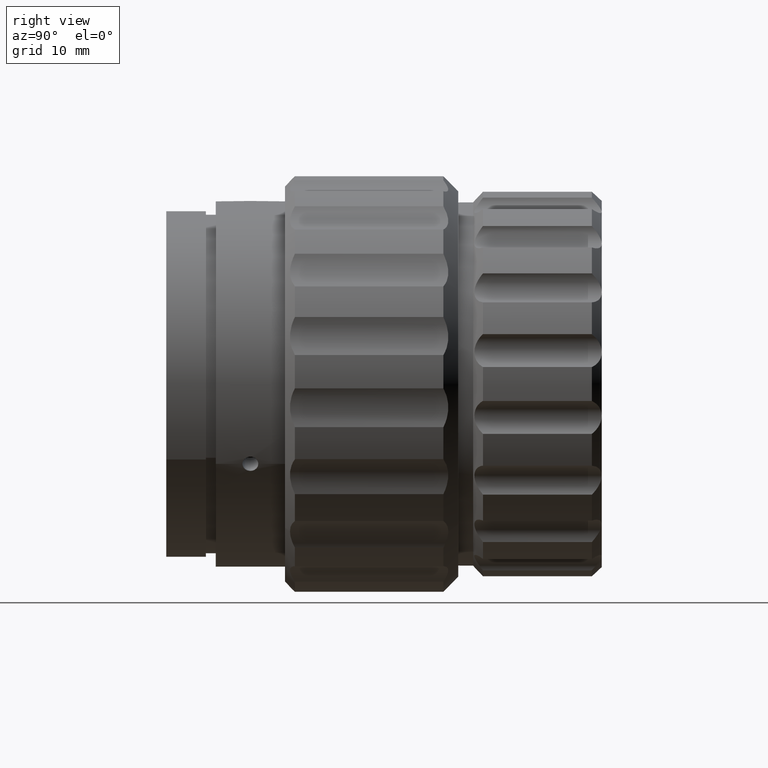
[diagram: clean part render]
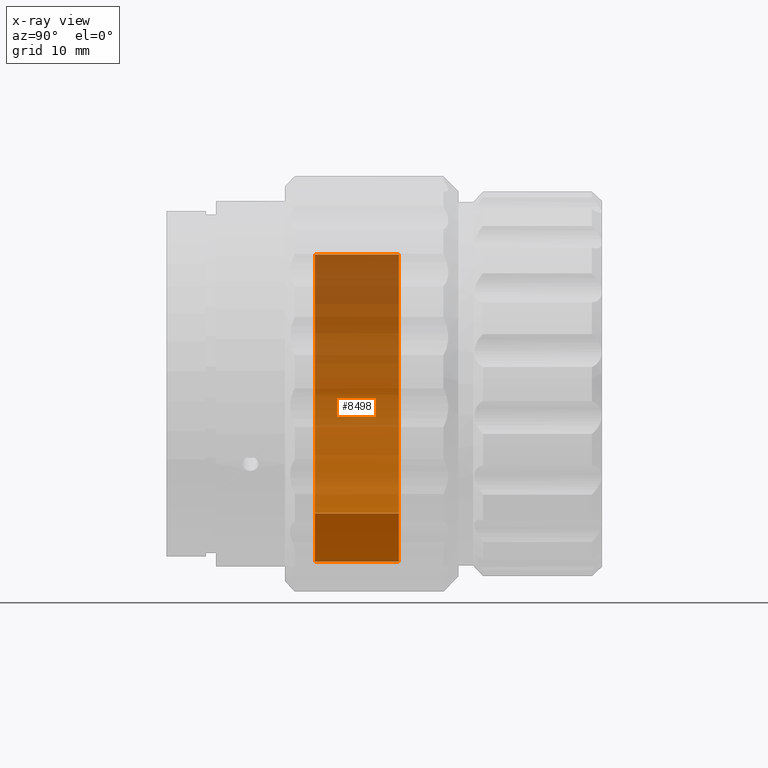
[diagram: x-ray — body ghosted, one internal face saturated and labeled with its STEP entity id]
A machine part, right view, then the same camera in x-ray: the body is ghosted and one INTERNAL B-rep face — a face not visible from any outside direction — is saturated and labeled: STEP entity #8498.
In plain terms, the highlighted cylindrical surface (partial cylindrical patch) has radius 18 mm, axis along (0, -1, -0).
Its self-contained STEP definition (entity closure, byte-faithful):
#65 = AXIS2_PLACEMENT_3D ( 'NONE', #7885, #6218, #9485 ) ;
#255 = ORIENTED_EDGE ( 'NONE', *, *, #7639, .T. ) ;
#1141 = DIRECTION ( 'NONE',  ( 0.6871969081691013947, 0.000000000000000000, -0.7264712034229765525 ) ) ;
#1534 = AXIS2_PLACEMENT_3D ( 'NONE', #3418, #8919, #1141 ) ;
#1547 = FACE_OUTER_BOUND ( 'NONE', #9885, .T. ) ;
#2254 = VERTEX_POINT ( 'NONE', #8409 ) ;
#2287 = ORIENTED_EDGE ( 'NONE', *, *, #6771, .F. ) ;
#2650 = DIRECTION ( 'NONE',  ( 0.000000000000000000, -1.000000000000000000, -0.000000000000000000 ) ) ;
#2898 = LINE ( 'NONE', #3860, #4098 ) ;
#3418 = CARTESIAN_POINT ( 'NONE',  ( 5.971701014312827738, -20.54875568700542487, 44.90330644533106863 ) ) ;
#3767 = ORIENTED_EDGE ( 'NONE', *, *, #9599, .T. ) ;
#3848 = DIRECTION ( 'NONE',  ( 0.6871969081691013947, 0.000000000000000000, -0.7264712034229765525 ) ) ;
#3860 = CARTESIAN_POINT ( 'NONE',  ( 18.34124536135665196, -23.54875568700542487, 31.82682478371749113 ) ) ;
#3891 = CARTESIAN_POINT ( 'NONE',  ( 5.971701014312827738, -12.04875568700542487, 44.90330644533106863 ) ) ;
#3893 = EDGE_CURVE ( 'NONE', #5053, #5384, #2898, .T. ) ;
#3945 = VECTOR ( 'NONE', #2650, 1000.000000000000000 ) ;
#4098 = VECTOR ( 'NONE', #7518, 1000.000000000000000 ) ;
#4189 = CARTESIAN_POINT ( 'NONE',  ( -6.397843332730995591, -23.54875568700542487, 57.97978810694464613 ) ) ;
#4883 = LINE ( 'NONE', #4189, #3945 ) ;
#5053 = VERTEX_POINT ( 'NONE', #8071 ) ;
#5160 = CARTESIAN_POINT ( 'NONE',  ( 18.34124536135665196, -20.54875568700542487, 31.82682478371749113 ) ) ;
#5384 = VERTEX_POINT ( 'NONE', #5160 ) ;
#5419 = DIRECTION ( 'NONE',  ( 0.000000000000000000, -1.000000000000000000, -0.000000000000000000 ) ) ;
#6218 = DIRECTION ( 'NONE',  ( 0.000000000000000000, -1.000000000000000000, -0.000000000000000000 ) ) ;
#6323 = VERTEX_POINT ( 'NONE', #10024 ) ;
#6529 = CIRCLE ( 'NONE', #7976, 18.00000000000000000 ) ;
#6771 = EDGE_CURVE ( 'NONE', #6323, #5053, #6529, .T. ) ;
#6884 = CIRCLE ( 'NONE', #1534, 18.00000000000000000 ) ;
#7026 = CYLINDRICAL_SURFACE ( 'NONE', #65, 18.00000000000000000 ) ;
#7518 = DIRECTION ( 'NONE',  ( 0.000000000000000000, -1.000000000000000000, -0.000000000000000000 ) ) ;
#7639 = EDGE_CURVE ( 'NONE', #6323, #2254, #4883, .T. ) ;
#7885 = CARTESIAN_POINT ( 'NONE',  ( 5.971701014312827738, -23.54875568700542487, 44.90330644533106863 ) ) ;
#7976 = AXIS2_PLACEMENT_3D ( 'NONE', #3891, #5419, #3848 ) ;
#8071 = CARTESIAN_POINT ( 'NONE',  ( 18.34124536135665196, -12.04875568700542487, 31.82682478371749113 ) ) ;
#8409 = CARTESIAN_POINT ( 'NONE',  ( -6.397843332730995591, -20.54875568700542487, 57.97978810694464613 ) ) ;
#8498 = ADVANCED_FACE ( 'NONE', ( #1547 ), #7026, .F. ) ;
#8919 = DIRECTION ( 'NONE',  ( 0.000000000000000000, -1.000000000000000000, -0.000000000000000000 ) ) ;
#9485 = DIRECTION ( 'NONE',  ( 0.6871969081691013947, 0.000000000000000000, -0.7264712034229765525 ) ) ;
#9599 = EDGE_CURVE ( 'NONE', #2254, #5384, #6884, .T. ) ;
#9654 = ORIENTED_EDGE ( 'NONE', *, *, #3893, .F. ) ;
#9885 = EDGE_LOOP ( 'NONE', ( #2287, #255, #3767, #9654 ) ) ;
#10024 = CARTESIAN_POINT ( 'NONE',  ( -6.397843332730995591, -12.04875568700542487, 57.97978810694464613 ) ) ;